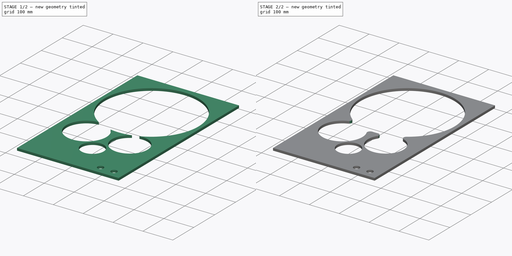
[diagram: build sequence overview — one tinted view per stage of 2, left to right]
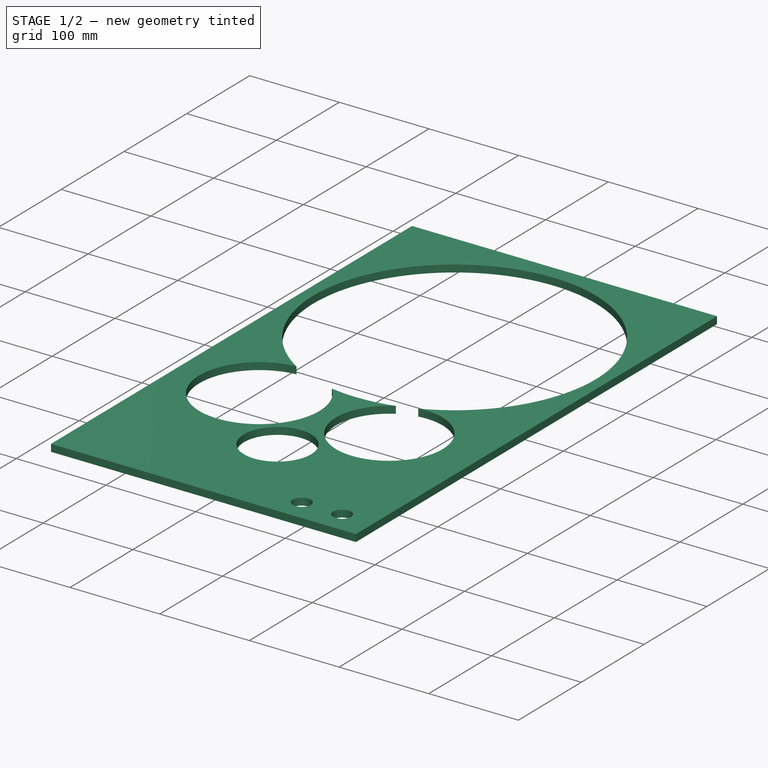
[diagram: stage 1 of 2 — iso view after this stage's code; geometry added in this stage tinted green]
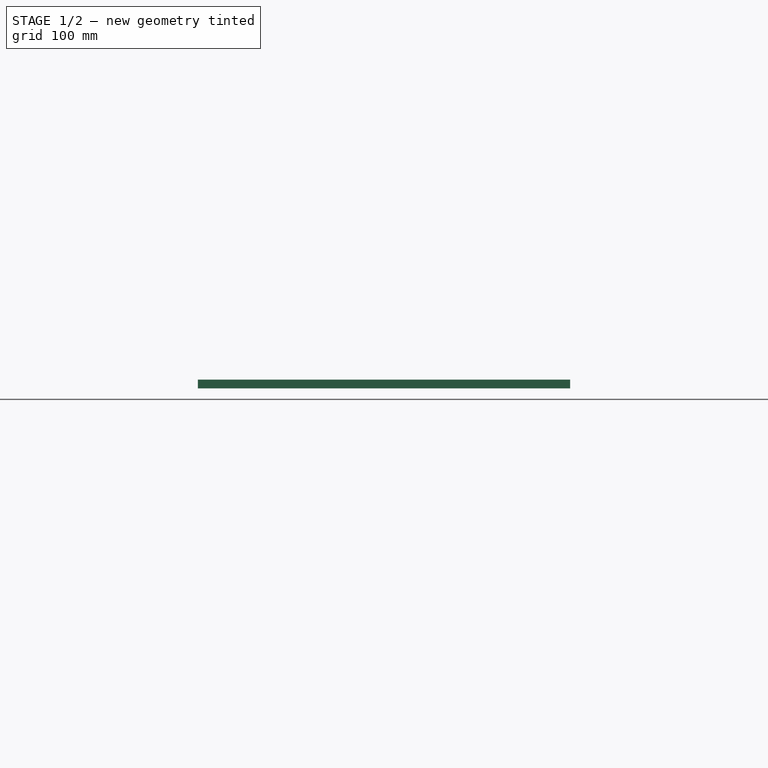
[diagram: stage 1 of 2 — front view after this stage's code; geometry added in this stage tinted green]
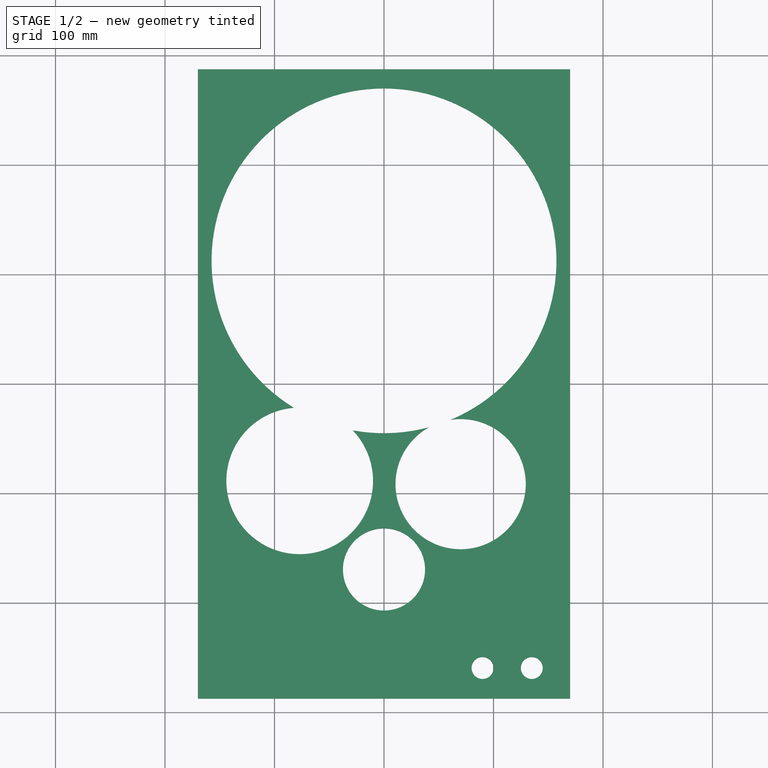
[diagram: stage 1 of 2 — top view after this stage's code; geometry added in this stage tinted green]
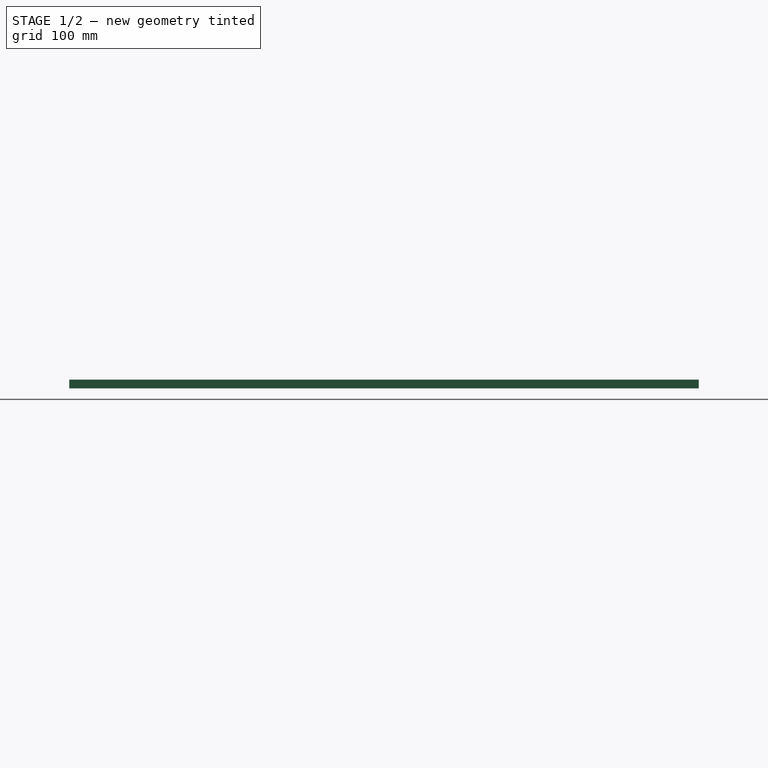
[diagram: stage 1 of 2 — right view after this stage's code; geometry added in this stage tinted green]
FCSTD DOCUMENT  (FreeCAD 0.18R)
Label: jbl-4311-cover
License: CreativeCommons Attribution
LicenseURL: http://creativecommons.org/licenses/by/4.0/
objects: Sketcher::SketchObject×1, PartDesign::Pad×1, PartDesign::Fillet×1, PartDesign::Body×1
note: 5 computed .brp shape members not serialized (recipe doc carries the construction recipe); baked Part::Feature solids carry a one-line shape summary decoded from their .brp

FEATURE [Sketcher::SketchObject] Sketch001
  MapMode = 5
  Support = -> [XY_Plane]
  sketch-geometry (12):
    g0: ArcOfCircle CenterX=0 CenterY=112.5 CenterZ=0 NormalX=0 NormalY=0 NormalZ=1 AngleXU=0 Radius=157.5 StartAngle=4.53136 EndAngle=4.97519
    g1: ArcOfCircle CenterX=-77 CenterY=-88.5 CenterZ=0 NormalX=0 NormalY=0 NormalZ=1 AngleXU=0 Radius=67 StartAngle=1.65164 EndAngle=7.04146
    g2: ArcOfCircle CenterX=70 CenterY=-91.5 CenterZ=0 NormalX=0 NormalY=0 NormalZ=1 AngleXU=0 Radius=59.5 StartAngle=2.08151 EndAngle=8.00437
    g3: Circle CenterX=90 CenterY=-259.5 CenterZ=0 NormalX=0 NormalY=0 NormalZ=1 AngleXU=0 Radius=10
    g4: Circle CenterX=135 CenterY=-259.5 CenterZ=0 NormalX=0 NormalY=0 NormalZ=1 AngleXU=0 Radius=10
    g5: Circle CenterX=0 CenterY=-169.5 CenterZ=0 NormalX=0 NormalY=0 NormalZ=1 AngleXU=0 Radius=37.5
    g6: LineSegment StartX=-170 StartY=287.5 StartZ=0 EndX=170 EndY=287.5 EndZ=0
    g7: LineSegment StartX=170 StartY=287.5 StartZ=0 EndX=170 EndY=-287.5 EndZ=0
    g8: LineSegment StartX=170 StartY=-287.5 StartZ=0 EndX=-170 EndY=-287.5 EndZ=0
    g9: LineSegment StartX=-170 StartY=-287.5 StartZ=0 EndX=-170 EndY=287.5 EndZ=0
    g10: ArcOfCircle CenterX=0 CenterY=112.5 CenterZ=0 NormalX=0 NormalY=0 NormalZ=1 AngleXU=0 Radius=157.5 StartAngle=5.11068 EndAngle=10.4449
    g11: ArcOfCircle [constr] CenterX=1.1314 CenterY=-60.8695 CenterZ=0 NormalX=0 NormalY=0 NormalZ=1 AngleXU=0 Radius=15.8732 StartAngle=5.86469 EndAngle=9.76469
  constraints (40):
    c: PointOnObject(g0,g-2)
    c: Coincident(g1,g10)
    c: Coincident(g1,g0)
    c: Diameter(g0) = 315
    c: Diameter(g1) = 134
    c: Coincident(g1,g0)
    c: Diameter(g4) = 20
    c: Equal(g3,g4)
    c: Horizontal(g3,g4)
    c: DistanceX(g3,g4) = 45
    c: Diameter(g2) = 119
    c: PointOnObject(g5,g-2)
    c: Diameter(g5) = 75
    c: Coincident(g6,g7)
    c: Coincident(g7,g8)
    c: Vertical(g9)
    c: Symmetric(g6,g6,g-2)
    c: Symmetric(g6,g7,g-1)
    c: Coincident(g9,g6)
    c: Horizontal(g8)
    c: Coincident(g9,g8)
    c: Distance(g7) = 575
    c: Distance(g8) = 340
    c: Distance(g0,g6) = 175
    c: Distance(g1,g9) = 93
    c: Distance(g1,g6) = 376
    c: Distance(g5,g8) = 118
    c: Distance(g4,g7) = 35
    c: Distance(g4,g8) = 28
    c: Distance(g2,g7) = 100
    c: Distance(g2,g8) = 196
    c: Equal(g0,g10)
    c: Coincident(g0,g10)
    c: Coincident(g2,g0)
    c: Coincident(g2,g10)
    c: Tangent(g11,g2)
    c: Tangent(g11,g1)
    c: PointOnObject(g11,g1)
    c: PointOnObject(g11,g2)
    c: Tangent(g0,g11)
FEATURE [PartDesign::Pad] Pad
  Length = 8
  Length2 = 100
  Profile = -> Sketch001
  Type = 0
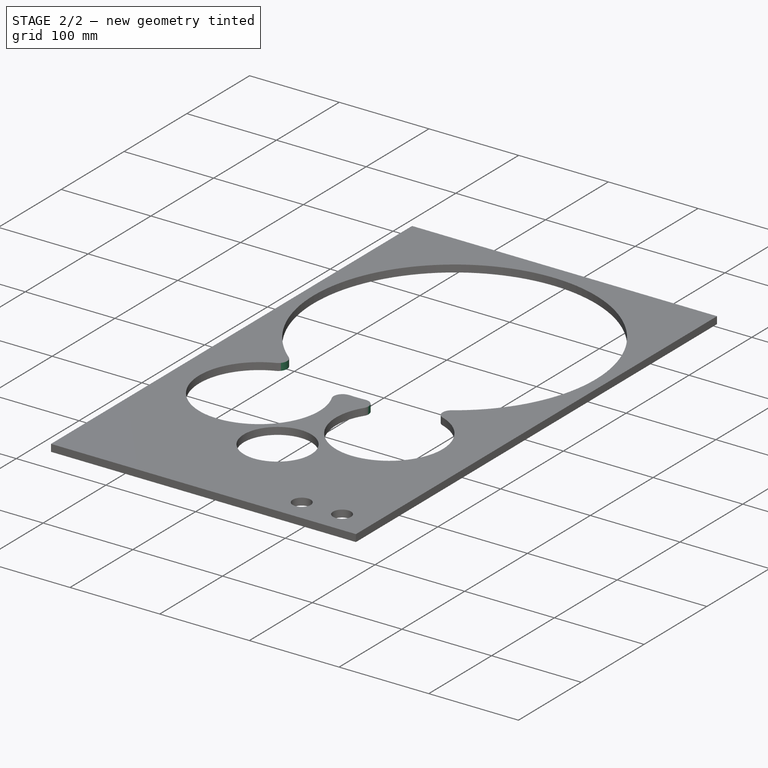
[diagram: stage 2 of 2 — iso view after this stage's code; geometry added in this stage tinted green]
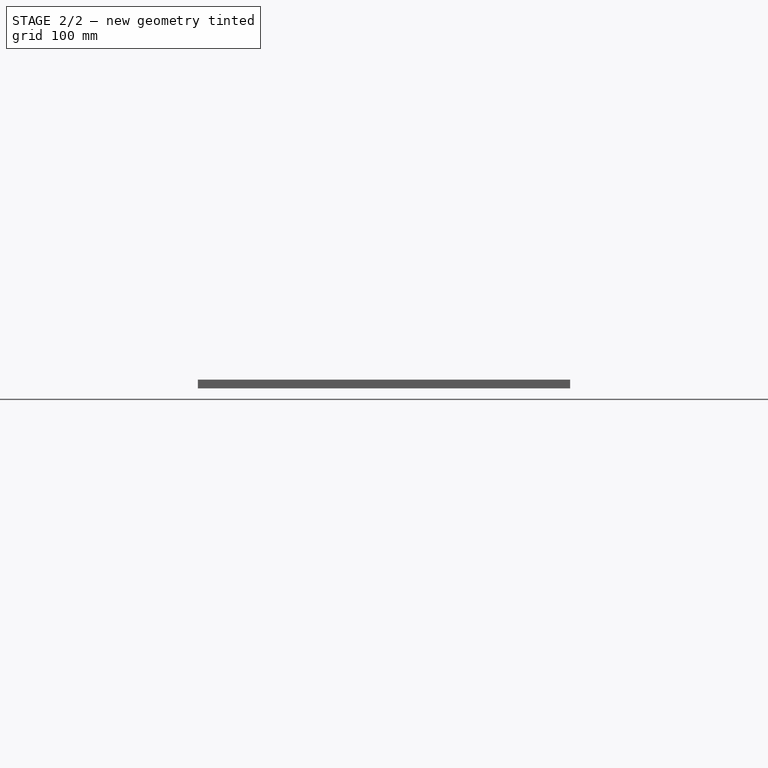
[diagram: stage 2 of 2 — front view after this stage's code; geometry added in this stage tinted green]
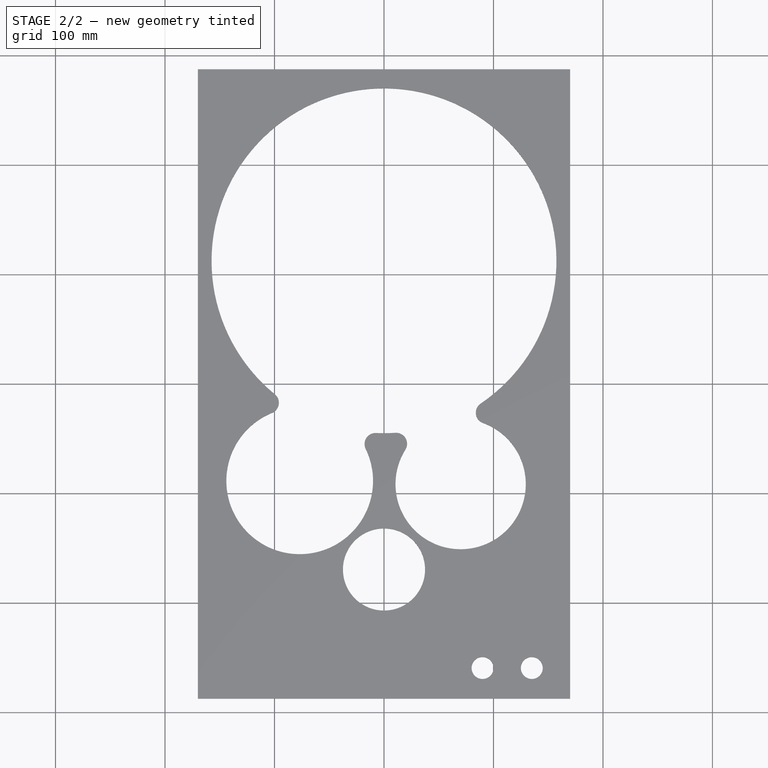
[diagram: stage 2 of 2 — top view after this stage's code; geometry added in this stage tinted green]
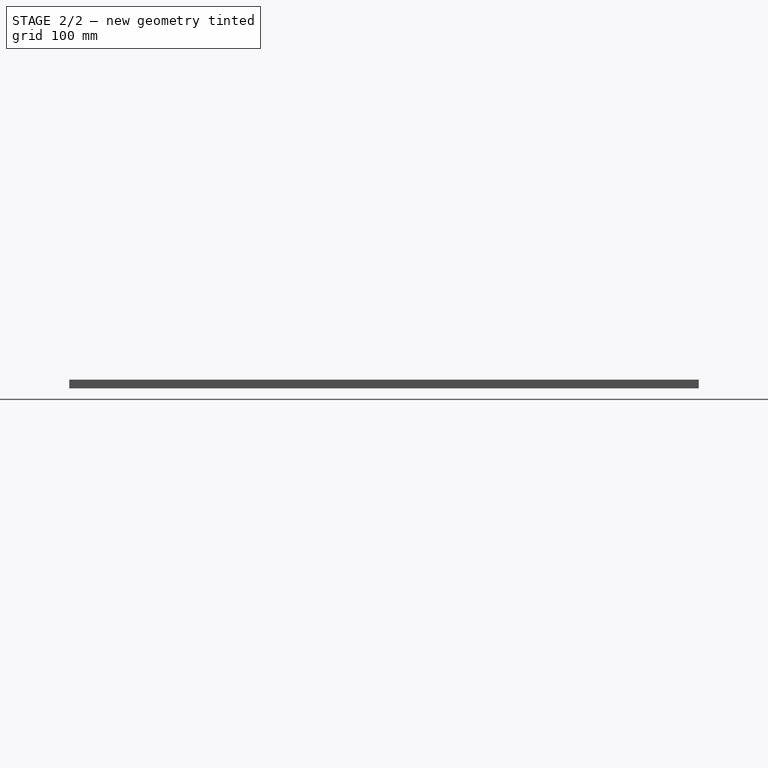
[diagram: stage 2 of 2 — right view after this stage's code; geometry added in this stage tinted green]
FEATURE [PartDesign::Fillet] Fillet
  Base = -> Pad [Edge20,Edge14,Edge17,Edge13]
  BaseFeature = -> Pad
  Radius = 10
FEATURE [PartDesign::Body] Body  label="cover"
  Group = -> [Sketch001,Pad,Fillet]
  Origin = -> Origin
  Tip = -> Fillet
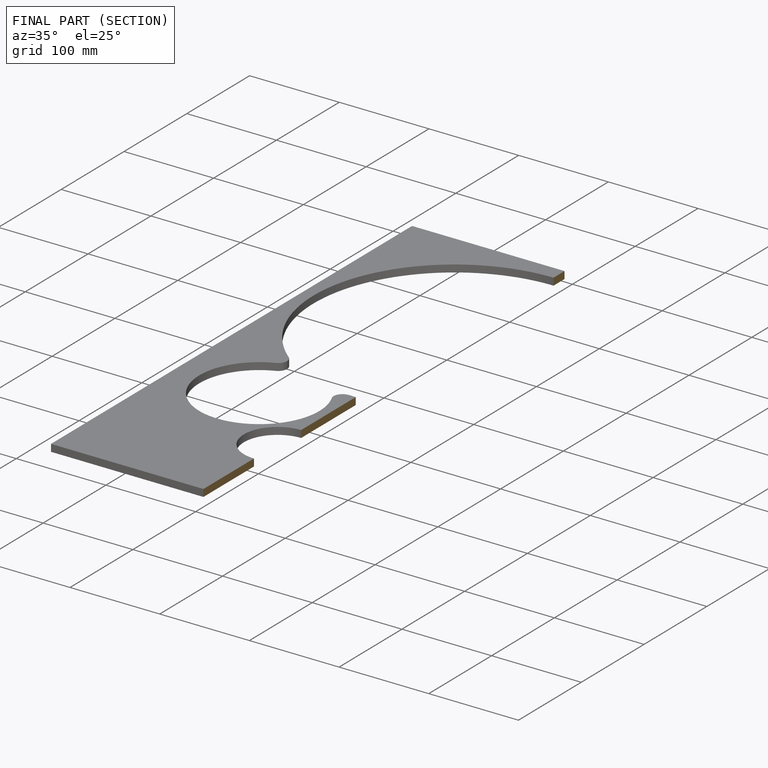
[diagram: finished part — half-section view (interior)]
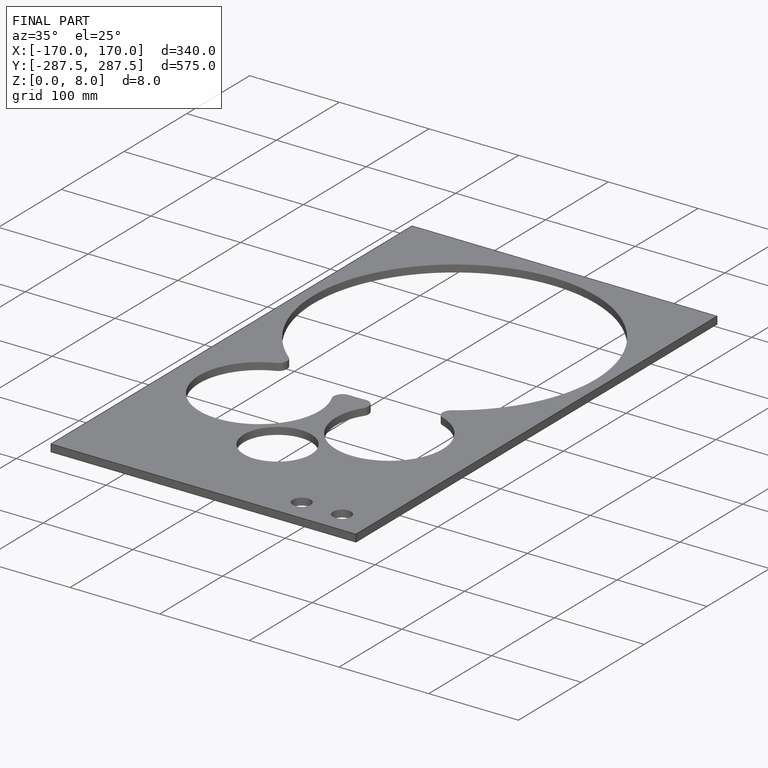
[diagram: finished part — iso view with bounding-box wireframe]
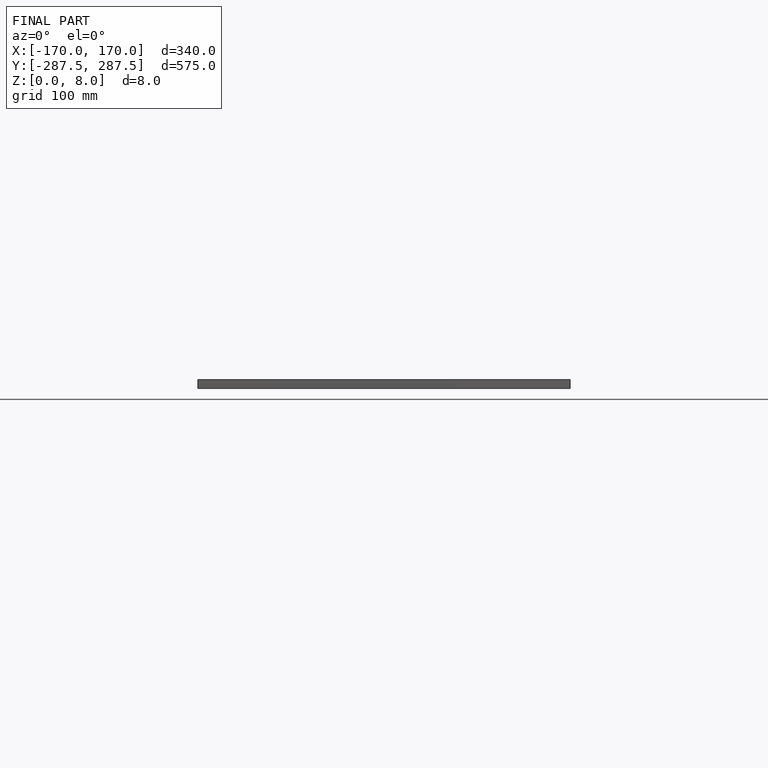
[diagram: finished part — front view with bounding-box wireframe]
